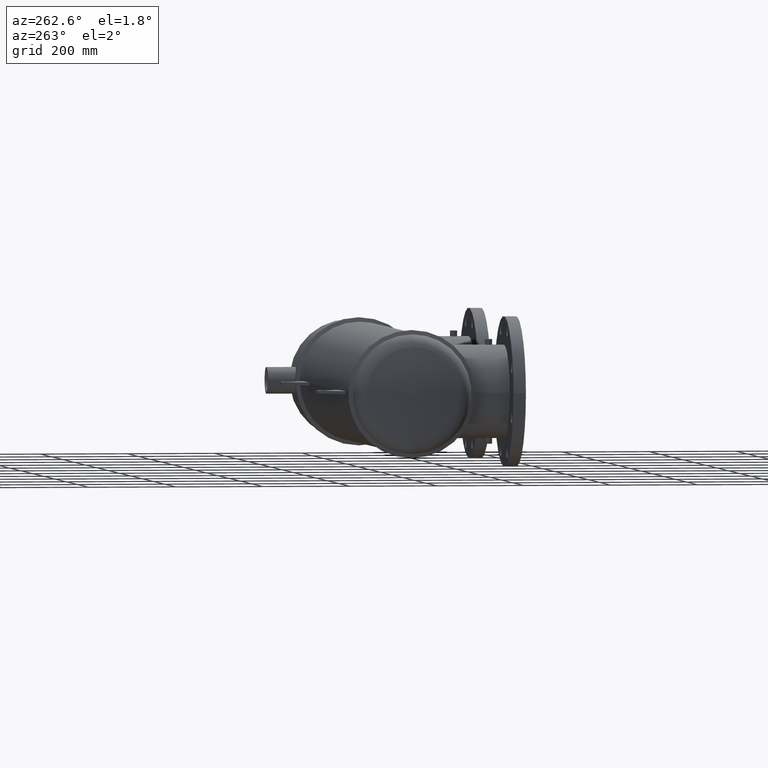
[diagram: clean part render]
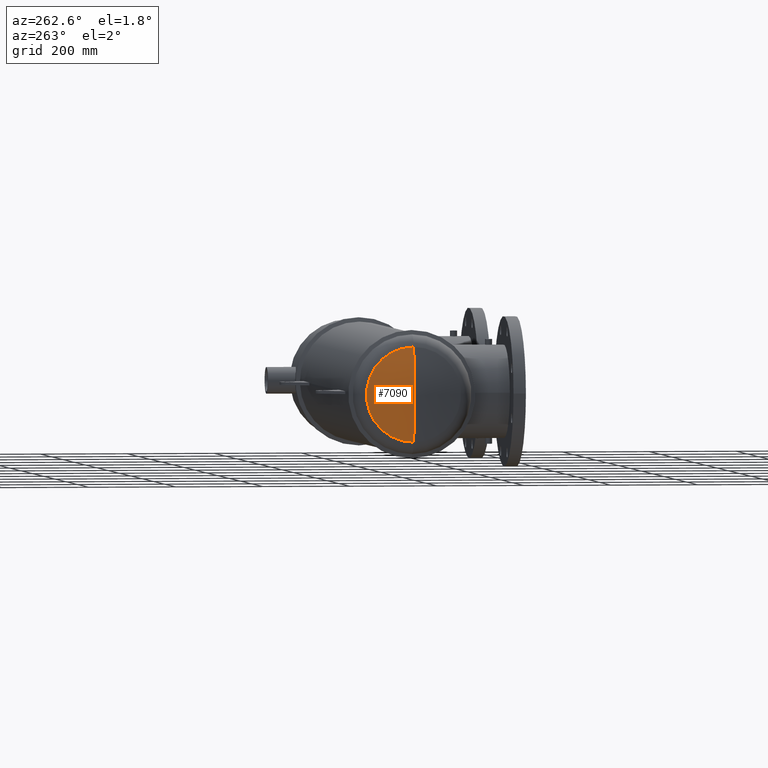
[diagram: same view with one face highlighted and labeled with its STEP entity id]
A machine part, auxiliary view. The second image highlights one B-rep face of the part: STEP entity #7090.
In plain terms, the highlighted toroidal blend (fillet) surface has major radius 0.0856 mm and minor (blend) radius 508 mm.
Its self-contained STEP definition (entity closure, byte-faithful):
#61 = DIRECTION ( 'NONE',  ( 0.0000000000000000000, 0.0000000000000000000, -1.000000000000000000 ) ) ;
#103 = AXIS2_PLACEMENT_3D ( 'NONE', #1681, #5052, #1665 ) ;
#992 = EDGE_CURVE ( 'NONE', #5991, #1495, #1402, .T. ) ;
#994 = CARTESIAN_POINT ( 'NONE',  ( 0.4607254174967248500, 5.908798225316915800E-016, -4.274804686443658000 ) ) ;
#1145 = DIRECTION ( 'NONE',  ( -1.000000000000000000, -0.0000000000000000000, -0.0000000000000000000 ) ) ;
#1162 = CARTESIAN_POINT ( 'NONE',  ( 19.99927305945529100, 0.0000000000000000000, 0.003369793703696657600 ) ) ;
#1402 = CIRCLE ( 'NONE', #103, 20.00000000000002800 ) ;
#1442 = DIRECTION ( 'NONE',  ( 0.0000000000000000000, 0.0000000000000000000, 1.000000000000000000 ) ) ;
#1495 = VERTEX_POINT ( 'NONE', #2161 ) ;
#1515 = CARTESIAN_POINT ( 'NONE',  ( 0.4607254174967248500, 0.0000000000000000000, 0.0000000000000000000 ) ) ;
#1538 = CIRCLE ( 'NONE', #1763, 4.274804686443658000 ) ;
#1665 = DIRECTION ( 'NONE',  ( 0.0000000000000000000, -1.224646799147353200E-016, 1.000000000000000000 ) ) ;
#1681 = CARTESIAN_POINT ( 'NONE',  ( 19.99927305945529100, 4.126807073019016200E-019, -0.003369793703696657600 ) ) ;
#1763 = AXIS2_PLACEMENT_3D ( 'NONE', #1515, #7064, #1442 ) ;
#2161 = CARTESIAN_POINT ( 'NONE',  ( -0.0007266566569941966800, 0.0000000000000000000, 0.0000000000000000000 ) ) ;
#2533 = EDGE_LOOP ( 'NONE', ( #5906, #3180, #5601 ) ) ;
#3180 = ORIENTED_EDGE ( 'NONE', *, *, #992, .T. ) ;
#3614 = EDGE_CURVE ( 'NONE', #5253, #1495, #5855, .T. ) ;
#3993 = DIRECTION ( 'NONE',  ( 0.0000000000000000000, -1.000000000000000000, 0.0000000000000000000 ) ) ;
#4433 = DIRECTION ( 'NONE',  ( 0.0000000000000000000, 0.0000000000000000000, 1.000000000000000000 ) ) ;
#5052 = DIRECTION ( 'NONE',  ( -0.0000000000000000000, 1.000000000000000000, 1.224646799147353200E-016 ) ) ;
#5135 = CARTESIAN_POINT ( 'NONE',  ( 0.4607254174967248500, 0.0000000000000000000, 4.274804686443658000 ) ) ;
#5253 = VERTEX_POINT ( 'NONE', #5135 ) ;
#5601 = ORIENTED_EDGE ( 'NONE', *, *, #3614, .F. ) ;
#5855 = CIRCLE ( 'NONE', #6519, 20.00000000000002800 ) ;
#5906 = ORIENTED_EDGE ( 'NONE', *, *, #6954, .T. ) ;
#5991 = VERTEX_POINT ( 'NONE', #994 ) ;
#6250 = FACE_OUTER_BOUND ( 'NONE', #2533, .T. ) ;
#6369 = AXIS2_PLACEMENT_3D ( 'NONE', #6728, #1145, #4433 ) ;
#6519 = AXIS2_PLACEMENT_3D ( 'NONE', #1162, #3993, #61 ) ;
#6531 = TOROIDAL_SURFACE ( 'NONE', #6369, 0.003369793703696657600, 20.00000000000002800 ) ;
#6728 = CARTESIAN_POINT ( 'NONE',  ( 19.99927305945529100, 0.0000000000000000000, 0.0000000000000000000 ) ) ;
#6954 = EDGE_CURVE ( 'NONE', #5253, #5991, #1538, .T. ) ;
#7064 = DIRECTION ( 'NONE',  ( -1.000000000000000000, -0.0000000000000000000, -0.0000000000000000000 ) ) ;
#7090 = ADVANCED_FACE ( 'NONE', ( #6250 ), #6531, .T. ) ;